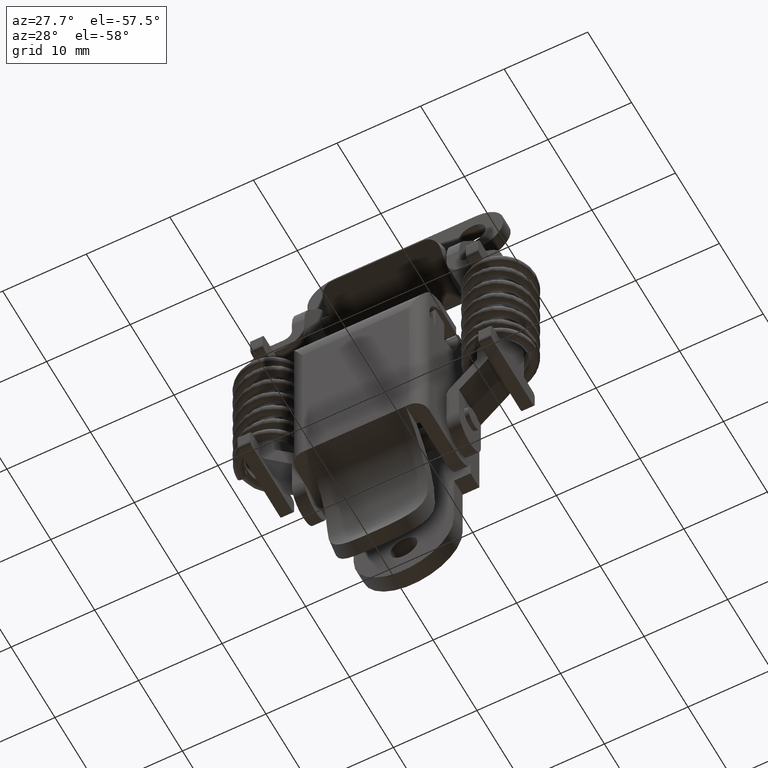
[diagram: clean part render]
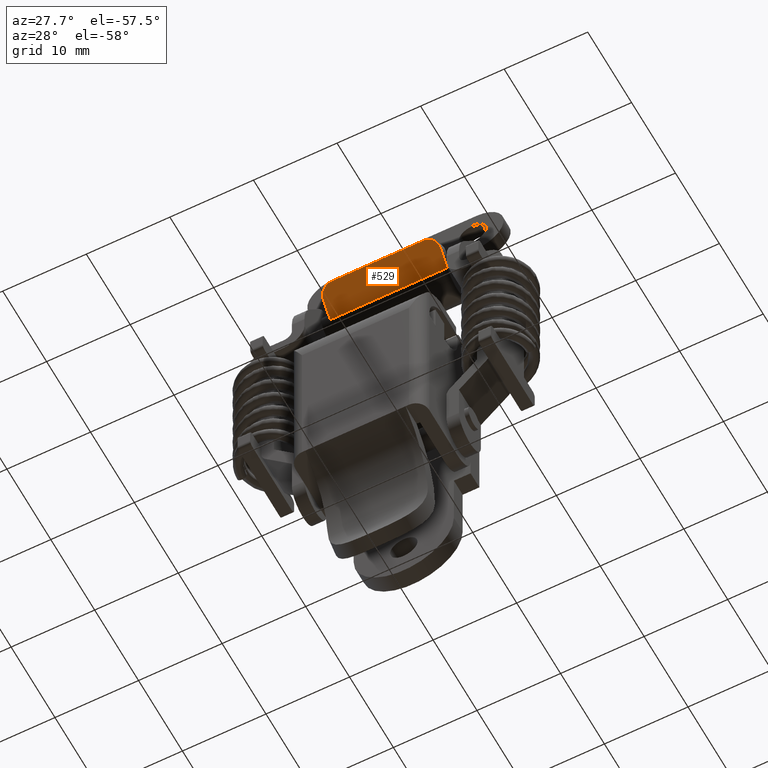
[diagram: same view with one face highlighted and labeled with its STEP entity id]
A machine part, auxiliary view. The second image highlights one B-rep face of the part: STEP entity #529.
In plain terms, the highlighted planar face has unit normal (0, -0.746, -0.666).
Its self-contained STEP definition (entity closure, byte-faithful):
#529=ADVANCED_FACE('',(#2878),#2877,.T.);
#2877=PLANE('',#6244);
#2878=FACE_OUTER_BOUND('',#6245,.T.);
#6241=CARTESIAN_POINT('',(-8.40000000000E+00,-6.65929785158E+00,-1.12756401753E+01));
#6242=DIRECTION('',(0.00000000000E+00,-7.45988575320E-01,-6.65958741584E-01));
#6243=DIRECTION('',(0.00000000000E+00,6.65958741584E-01,-7.45988575320E-01));
#6244=AXIS2_PLACEMENT_3D('',#6241,#6242,#6243);
#6245=EDGE_LOOP('',(#7503,#7504,#7505,#7506,#7507,#7508));
#7503=ORIENTED_EDGE('',*,*,#8135,.T.);
#7504=ORIENTED_EDGE('',*,*,#8115,.T.);
#7505=ORIENTED_EDGE('',*,*,#8158,.T.);
#7506=ORIENTED_EDGE('',*,*,#8111,.T.);
#7507=ORIENTED_EDGE('',*,*,#8140,.F.);
#7508=ORIENTED_EDGE('',*,*,#8159,.F.);
#8111=EDGE_CURVE('',#11983,#11984,#11985,.T.);
#8115=EDGE_CURVE('',#12011,#12012,#12013,.T.);
#8135=EDGE_CURVE('',#12150,#12011,#12151,.T.);
#8140=EDGE_CURVE('',#12183,#11984,#12184,.T.);
#8158=EDGE_CURVE('',#12012,#11983,#12301,.T.);
#8159=EDGE_CURVE('',#12150,#12183,#12307,.T.);
#11983=VERTEX_POINT('',#15107);
#11984=VERTEX_POINT('',#15108);
#11985=CIRCLE('',#15112,1.50000000000E+00);
#12011=VERTEX_POINT('',#15125);
#12012=VERTEX_POINT('',#15126);
#12013=CIRCLE('',#15130,1.50000000000E+00);
#12150=VERTEX_POINT('',#15212);
#12151=LINE('',#15213,#15214);
#12183=VERTEX_POINT('',#15232);
#12184=LINE('',#15233,#15234);
#12301=LINE('',#15304,#15305);
#12307=LINE('',#15307,#15308);
#15107=CARTESIAN_POINT('',(-5.50000000000E+00,-6.40050391811E+00,-1.15655339865E+01));
#15108=CARTESIAN_POINT('',(-7.00000000000E+00,-5.40156580574E+00,-1.26845168495E+01));
#15109=CARTESIAN_POINT('',(-5.50000000000E+00,-5.40156580574E+00,-1.26845168495E+01));
#15110=DIRECTION('',(0.00000000000E+00,-7.45988575320E-01,-6.65958741584E-01));
#15111=DIRECTION('',(-0.00000000000E+00,-6.65958741584E-01,7.45988575320E-01));
#15112=AXIS2_PLACEMENT_3D('',#15109,#15110,#15111);
#15125=CARTESIAN_POINT('',(7.00000000000E+00,-5.40156580574E+00,-1.26845168495E+01));
#15126=CARTESIAN_POINT('',(5.50000000000E+00,-6.40050391811E+00,-1.15655339865E+01));
#15127=CARTESIAN_POINT('',(5.50000000000E+00,-5.40156580574E+00,-1.26845168495E+01));
#15128=DIRECTION('',(0.00000000000E+00,-7.45988575320E-01,-6.65958741584E-01));
#15129=DIRECTION('',(-0.00000000000E+00,-6.65958741584E-01,7.45988575320E-01));
#15130=AXIS2_PLACEMENT_3D('',#15127,#15128,#15129);
#15212=CARTESIAN_POINT('',(7.00000000000E+00,-3.81256458349E+00,-1.44644720989E+01));
#15213=CARTESIAN_POINT('',(7.00000000000E+00,-3.81256458349E+00,-1.44644720989E+01));
#15214=VECTOR('',#15215,2.38603553497E+00);
#15215=DIRECTION('',(0.00000000000E+00,-6.65958741584E-01,7.45988575320E-01));
#15232=CARTESIAN_POINT('',(-7.00000000000E+00,-3.81256458349E+00,-1.44644720989E+01));
#15233=CARTESIAN_POINT('',(-7.00000000000E+00,-3.81256458349E+00,-1.44644720989E+01));
#15234=VECTOR('',#15235,2.38603553497E+00);
#15235=DIRECTION('',(0.00000000000E+00,-6.65958741584E-01,7.45988575320E-01));
#15304=CARTESIAN_POINT('',(5.50000000000E+00,-6.40050391811E+00,-1.15655339865E+01));
#15305=VECTOR('',#15306,1.10000000000E+01);
#15306=DIRECTION('',(-1.00000000000E+00,0.00000000000E+00,0.00000000000E+00));
#15307=CARTESIAN_POINT('',(7.00000000000E+00,-3.81256458349E+00,-1.44644720989E+01));
#15308=VECTOR('',#15309,1.40000000000E+01);
#15309=DIRECTION('',(-1.00000000000E+00,0.00000000000E+00,0.00000000000E+00));